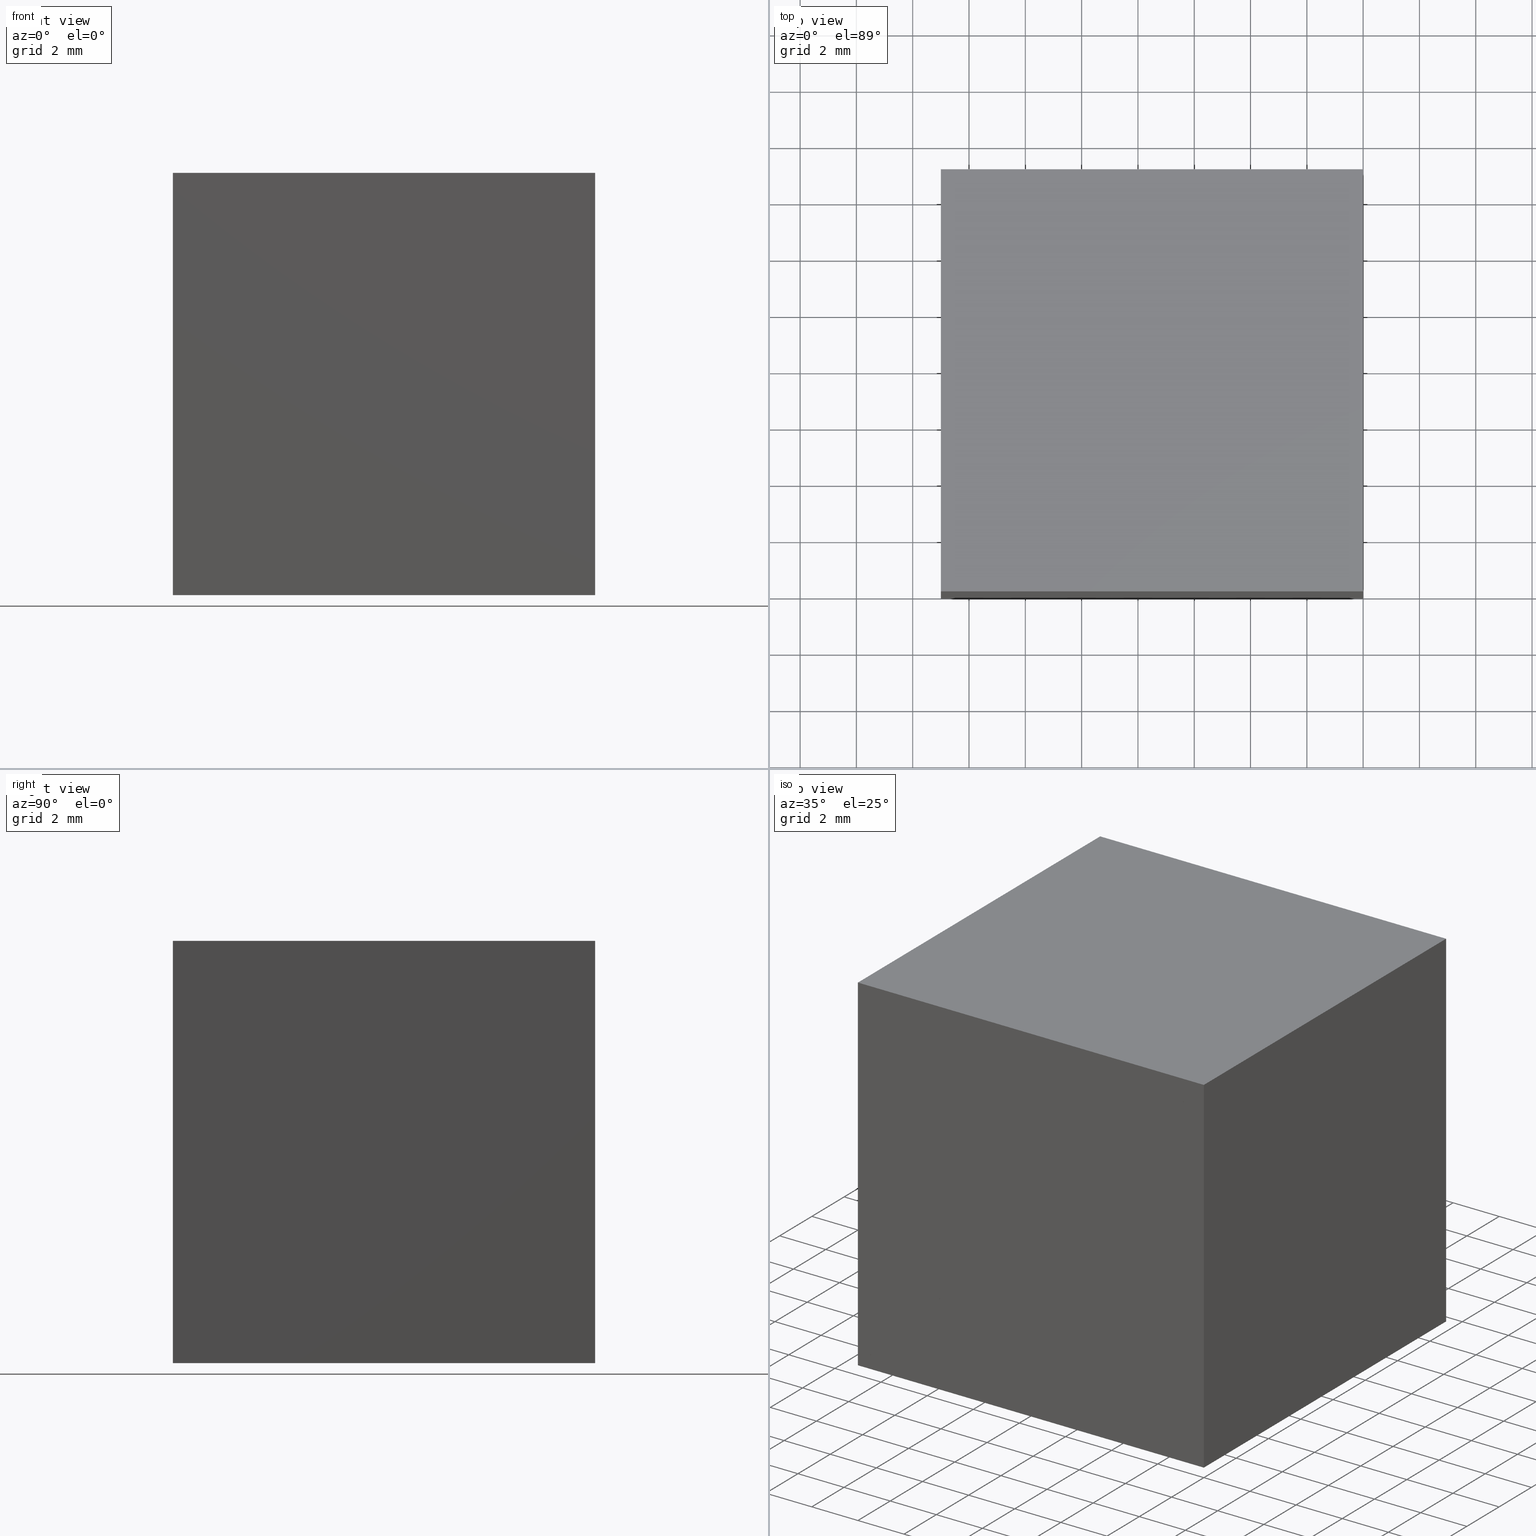
[diagram: canonical four-view strip — front | top / right | iso, engineering-drawing reading convention]
A machine part, canonical four-view strip (front | top / right | iso — engineering-drawing reading convention). The complete STEP part file that produces these views, byte-faithful:
ISO-10303-21;
HEADER;
FILE_DESCRIPTION (( 'STEP AP214' ),
    '1' );
FILE_NAME ('352509.STEP',
    '2019-08-15T02:08:46',
    ( 'user' ),
    ( '΢���й�' ),
    'SwSTEP 2.0',
    'SolidWorks 2016',
    '' );
FILE_SCHEMA (( 'AUTOMOTIVE_DESIGN' ));
ENDSEC;

DATA;
#1 = ORIENTED_EDGE ( 'NONE', *, *, #194, .T. ) ;
#2 = EDGE_LOOP ( 'NONE', ( #248, #24, #113, #265 ) ) ;
#3 = CARTESIAN_POINT ( 'NONE',  ( -15.00000000000000000, 15.00000000000000000, 0.0000000000000000000 ) ) ;
#4 = ADVANCED_FACE ( 'NONE', ( #130 ), #169, .F. ) ;
#5 = EDGE_CURVE ( 'NONE', #227, #223, #267, .T. ) ;
#6 = PLANE ( 'NONE',  #278 ) ;
#7 = ORIENTED_EDGE ( 'NONE', *, *, #240, .T. ) ;
#8 = FACE_OUTER_BOUND ( 'NONE', #81, .T. ) ;
#9 = VECTOR ( 'NONE', #281, 1000.000000000000000 ) ;
#10 = AXIS2_PLACEMENT_3D ( 'NONE', #201, #184, #31 ) ;
#11 = STYLED_ITEM ( 'NONE', ( #177 ), #145 ) ;
#12 = DIRECTION ( 'NONE',  ( 0.7071067811865476800, 0.0000000000000000000, 0.7071067811865474600 ) ) ;
#13 = FACE_OUTER_BOUND ( 'NONE', #259, .T. ) ;
#14 = PLANE ( 'NONE',  #105 ) ;
#15 = DIRECTION ( 'NONE',  ( 0.0000000000000000000, -0.0000000000000000000, 1.000000000000000000 ) ) ;
#16 = DIRECTION ( 'NONE',  ( 0.0000000000000000000, 0.0000000000000000000, 1.000000000000000000 ) ) ;
#17 = ORIENTED_EDGE ( 'NONE', *, *, #245, .T. ) ;
#18 = AXIS2_PLACEMENT_3D ( 'NONE', #197, #168, #16 ) ;
#19 = VECTOR ( 'NONE', #82, 1000.000000000000000 ) ;
#20 = SURFACE_SIDE_STYLE ('',( #203 ) ) ;
#21 =( NAMED_UNIT ( * ) PLANE_ANGLE_UNIT ( ) SI_UNIT ( $, .RADIAN. ) );
#22 = LINE ( 'NONE', #3, #135 ) ;
#23 = ORIENTED_EDGE ( 'NONE', *, *, #159, .F. ) ;
#24 = ORIENTED_EDGE ( 'NONE', *, *, #194, .F. ) ;
#25 = CARTESIAN_POINT ( 'NONE',  ( -15.00000000000000000, 15.00000000000000000, -14.99999999999999600 ) ) ;
#26 = EDGE_CURVE ( 'NONE', #62, #136, #261, .T. ) ;
#27 = CARTESIAN_POINT ( 'NONE',  ( 0.0000000000000000000, 15.00000000000000000, 0.0000000000000000000 ) ) ;
#28 = PRESENTATION_LAYER_ASSIGNMENT (  '', '', ( #294 ) ) ;
#29 = VECTOR ( 'NONE', #222, 1000.000000000000000 ) ;
#30 = PRESENTATION_LAYER_ASSIGNMENT (  '', '', ( #11 ) ) ;
#31 = DIRECTION ( 'NONE',  ( 0.0000000000000000000, -0.0000000000000000000, 1.000000000000000000 ) ) ;
#32 = ORIENTED_EDGE ( 'NONE', *, *, #119, .F. ) ;
#33 = DIRECTION ( 'NONE',  ( 0.7071067811865476800, 0.0000000000000000000, 0.7071067811865474600 ) ) ;
#34 = ADVANCED_FACE ( 'NONE', ( #140 ), #196, .F. ) ;
#35 = ORIENTED_EDGE ( 'NONE', *, *, #176, .F. ) ;
#36 = LINE ( 'NONE', #192, #158 ) ;
#37 = CARTESIAN_POINT ( 'NONE',  ( 0.0000000000000000000, 0.0000000000000000000, 0.0000000000000000000 ) ) ;
#38 = EDGE_LOOP ( 'NONE', ( #52, #87, #237 ) ) ;
#39 = EDGE_LOOP ( 'NONE', ( #57, #292, #32, #1 ) ) ;
#40 = MECHANICAL_DESIGN_GEOMETRIC_PRESENTATION_REPRESENTATION (  '', ( #294 ), #54 ) ;
#41 = MECHANICAL_DESIGN_GEOMETRIC_PRESENTATION_REPRESENTATION (  '', ( #11 ), #56 ) ;
#42 =( NAMED_UNIT ( * ) PLANE_ANGLE_UNIT ( ) SI_UNIT ( $, .RADIAN. ) );
#43 = VERTEX_POINT ( 'NONE', #59 ) ;
#44 = APPLICATION_CONTEXT ( 'automotive_design' ) ;
#45 = DIRECTION ( 'NONE',  ( 0.0000000000000000000, -1.000000000000000000, 0.0000000000000000000 ) ) ;
#46 = AXIS2_PLACEMENT_3D ( 'NONE', #102, #79, #221 ) ;
#47 = ORIENTED_EDGE ( 'NONE', *, *, #111, .T. ) ;
#48 = DIRECTION ( 'NONE',  ( -0.0000000000000000000, 0.0000000000000000000, 1.000000000000000000 ) ) ;
#49 = PLANE ( 'NONE',  #10 ) ;
#50 =( LENGTH_UNIT ( ) NAMED_UNIT ( * ) SI_UNIT ( .MILLI., .METRE. ) );
#51 = CARTESIAN_POINT ( 'NONE',  ( -15.00000000000000000, 0.0000000000000000000, -14.99999999999999600 ) ) ;
#52 = ORIENTED_EDGE ( 'NONE', *, *, #26, .F. ) ;
#53 = PLANE ( 'NONE',  #182 ) ;
#54 =( GEOMETRIC_REPRESENTATION_CONTEXT ( 3 ) GLOBAL_UNCERTAINTY_ASSIGNED_CONTEXT ( ( #198 ) ) GLOBAL_UNIT_ASSIGNED_CONTEXT ( ( #50, #172, #72 ) ) REPRESENTATION_CONTEXT ( 'NONE', 'WORKASPACE' ) );
#55 = PRODUCT ( '352509', '352509', '', ( #64 ) ) ;
#56 =( GEOMETRIC_REPRESENTATION_CONTEXT ( 3 ) GLOBAL_UNCERTAINTY_ASSIGNED_CONTEXT ( ( #90 ) ) GLOBAL_UNIT_ASSIGNED_CONTEXT ( ( #298, #21, #228 ) ) REPRESENTATION_CONTEXT ( 'NONE', 'WORKASPACE' ) );
#57 = ORIENTED_EDGE ( 'NONE', *, *, #133, .T. ) ;
#58 = DIRECTION ( 'NONE',  ( 0.7071067811865476800, 0.0000000000000000000, 0.7071067811865474600 ) ) ;
#59 = CARTESIAN_POINT ( 'NONE',  ( 0.0000000000000000000, 15.00000000000000000, -15.00000000000000000 ) ) ;
#60 = VERTEX_POINT ( 'NONE', #289 ) ;
#61 = CARTESIAN_POINT ( 'NONE',  ( 0.0000000000000000000, 15.00000000000000000, 0.0000000000000000000 ) ) ;
#62 = VERTEX_POINT ( 'NONE', #154 ) ;
#63 = FACE_OUTER_BOUND ( 'NONE', #153, .T. ) ;
#64 = PRODUCT_CONTEXT ( 'NONE', #44, 'mechanical' ) ;
#65 = APPLICATION_PROTOCOL_DEFINITION ( 'draft international standard', 'automotive_design', 1998, #44 ) ;
#66 = FILL_AREA_STYLE_COLOUR ( '', #299 ) ;
#67 = ORIENTED_EDGE ( 'NONE', *, *, #276, .T. ) ;
#68 = VECTOR ( 'NONE', #236, 1000.000000000000000 ) ;
#69 = PRESENTATION_STYLE_ASSIGNMENT (( #212 ) ) ;
#70 = VECTOR ( 'NONE', #126, 1000.000000000000000 ) ;
#71 = CARTESIAN_POINT ( 'NONE',  ( -15.00000000000000000, 15.00000000000000000, -14.99999999999999600 ) ) ;
#72 =( NAMED_UNIT ( * ) SI_UNIT ( $, .STERADIAN. ) SOLID_ANGLE_UNIT ( ) );
#73 = ORIENTED_EDGE ( 'NONE', *, *, #111, .F. ) ;
#74 = VECTOR ( 'NONE', #131, 1000.000000000000000 ) ;
#75 = ADVANCED_FACE ( 'NONE', ( #83 ), #291, .T. ) ;
#76 = ORIENTED_EDGE ( 'NONE', *, *, #211, .T. ) ;
#77 = AXIS2_PLACEMENT_3D ( 'NONE', #193, #250, #15 ) ;
#78 = VECTOR ( 'NONE', #191, 1000.000000000000000 ) ;
#79 = DIRECTION ( 'NONE',  ( -0.0000000000000000000, 1.000000000000000000, 0.0000000000000000000 ) ) ;
#80 = VECTOR ( 'NONE', #231, 1000.000000000000000 ) ;
#81 = EDGE_LOOP ( 'NONE', ( #23, #247, #104, #67 ) ) ;
#82 = DIRECTION ( 'NONE',  ( -0.0000000000000000000, -0.0000000000000000000, -1.000000000000000000 ) ) ;
#83 = FACE_OUTER_BOUND ( 'NONE', #301, .T. ) ;
#84 =( GEOMETRIC_REPRESENTATION_CONTEXT ( 3 ) GLOBAL_UNCERTAINTY_ASSIGNED_CONTEXT ( ( #146 ) ) GLOBAL_UNIT_ASSIGNED_CONTEXT ( ( #134, #258, #112 ) ) REPRESENTATION_CONTEXT ( 'NONE', 'WORKASPACE' ) );
#85 = DIRECTION ( 'NONE',  ( 1.000000000000000000, 0.0000000000000000000, 0.0000000000000000000 ) ) ;
#86 = CARTESIAN_POINT ( 'NONE',  ( 0.0000000000000000000, 0.0000000000000000000, 0.0000000000000000000 ) ) ;
#87 = ORIENTED_EDGE ( 'NONE', *, *, #290, .F. ) ;
#88 = DIRECTION ( 'NONE',  ( -0.7071067811865476800, 0.0000000000000000000, -0.7071067811865474600 ) ) ;
#89 = CARTESIAN_POINT ( 'NONE',  ( -15.00000000000000000, 15.00000000000000000, -14.99999999999999600 ) ) ;
#90 = UNCERTAINTY_MEASURE_WITH_UNIT (LENGTH_MEASURE( 1.000000000000000100E-005 ), #298, 'distance_accuracy_value', 'NONE');
#91 = LINE ( 'NONE', #270, #285 ) ;
#92 = SURFACE_SIDE_STYLE ('',( #188 ) ) ;
#93 = ADVANCED_FACE ( 'NONE', ( #210 ), #167, .F. ) ;
#94 = ORIENTED_EDGE ( 'NONE', *, *, #211, .F. ) ;
#95 = VECTOR ( 'NONE', #12, 1000.000000000000000 ) ;
#96 = CARTESIAN_POINT ( 'NONE',  ( 0.0000000000000000000, 15.00000000000000000, -15.00000000000000000 ) ) ;
#97 = AXIS2_PLACEMENT_3D ( 'NONE', #138, #230, #88 ) ;
#98 = AXIS2_PLACEMENT_3D ( 'NONE', #86, #110, #274 ) ;
#99 = CARTESIAN_POINT ( 'NONE',  ( 0.0000000000000000000, 15.00000000000000000, -15.00000000000000000 ) ) ;
#100 = CARTESIAN_POINT ( 'NONE',  ( 0.0000000000000000000, 0.0000000000000000000, 0.0000000000000000000 ) ) ;
#101 = EDGE_CURVE ( 'NONE', #232, #163, #147, .T. ) ;
#102 = CARTESIAN_POINT ( 'NONE',  ( 0.0000000000000000000, 15.00000000000000000, 0.0000000000000000000 ) ) ;
#103 = DIRECTION ( 'NONE',  ( 2.312964634635743000E-016, -0.0000000000000000000, 1.000000000000000000 ) ) ;
#104 = ORIENTED_EDGE ( 'NONE', *, *, #26, .T. ) ;
#105 = AXIS2_PLACEMENT_3D ( 'NONE', #249, #150, #287 ) ;
#106 = ORIENTED_EDGE ( 'NONE', *, *, #240, .F. ) ;
#107 = PRESENTATION_STYLE_ASSIGNMENT (( #273 ) ) ;
#108 = SURFACE_SIDE_STYLE ('',( #239 ) ) ;
#109 = VERTEX_POINT ( 'NONE', #100 ) ;
#110 = DIRECTION ( 'NONE',  ( 0.0000000000000000000, 0.0000000000000000000, 1.000000000000000000 ) ) ;
#111 = EDGE_CURVE ( 'NONE', #60, #232, #91, .T. ) ;
#112 =( NAMED_UNIT ( * ) SI_UNIT ( $, .STERADIAN. ) SOLID_ANGLE_UNIT ( ) );
#113 = ORIENTED_EDGE ( 'NONE', *, *, #229, .F. ) ;
#114 = PRODUCT_DEFINITION_SHAPE ( 'NONE', 'NONE',  #115 ) ;
#115 = PRODUCT_DEFINITION ( 'δ֪', '', #132, #219 ) ;
#116 = ORIENTED_EDGE ( 'NONE', *, *, #5, .T. ) ;
#117 = ORIENTED_EDGE ( 'NONE', *, *, #176, .T. ) ;
#118 = FILL_AREA_STYLE ('',( #142 ) ) ;
#119 = EDGE_CURVE ( 'NONE', #207, #43, #36, .T. ) ;
#120 = CARTESIAN_POINT ( 'NONE',  ( -15.00000000000000000, 15.00000000000000000, 0.0000000000000000000 ) ) ;
#121 = ADVANCED_FACE ( 'NONE', ( #13 ), #14, .F. ) ;
#122 = ORIENTED_EDGE ( 'NONE', *, *, #229, .T. ) ;
#123 = VECTOR ( 'NONE', #33, 1000.000000000000000 ) ;
#124 = DIRECTION ( 'NONE',  ( 0.7071067811865474600, 0.0000000000000000000, -0.7071067811865476800 ) ) ;
#125 = FACE_OUTER_BOUND ( 'NONE', #284, .T. ) ;
#126 = DIRECTION ( 'NONE',  ( 0.0000000000000000000, 0.0000000000000000000, -1.000000000000000000 ) ) ;
#127 = CARTESIAN_POINT ( 'NONE',  ( 0.0000000000000000000, 15.00000000000000000, 0.0000000000000000000 ) ) ;
#128 = ORIENTED_EDGE ( 'NONE', *, *, #264, .F. ) ;
#129 = VECTOR ( 'NONE', #45, 1000.000000000000000 ) ;
#130 = FACE_OUTER_BOUND ( 'NONE', #206, .T. ) ;
#131 = DIRECTION ( 'NONE',  ( -0.0000000000000000000, -1.000000000000000000, -0.0000000000000000000 ) ) ;
#132 = PRODUCT_DEFINITION_FORMATION_WITH_SPECIFIED_SOURCE ( '�κ�', '', #55, .NOT_KNOWN. ) ;
#133 = EDGE_CURVE ( 'NONE', #163, #60, #200, .T. ) ;
#134 =( LENGTH_UNIT ( ) NAMED_UNIT ( * ) SI_UNIT ( .MILLI., .METRE. ) );
#135 = VECTOR ( 'NONE', #208, 1000.000000000000000 ) ;
#136 = VERTEX_POINT ( 'NONE', #246 ) ;
#137 = SHAPE_DEFINITION_REPRESENTATION ( #114, #145 ) ;
#138 = CARTESIAN_POINT ( 'NONE',  ( 0.0000000000000000000, 15.00000000000000000, 0.0000000000000000000 ) ) ;
#139 = AXIS2_PLACEMENT_3D ( 'NONE', #148, #124, #268 ) ;
#140 = FACE_OUTER_BOUND ( 'NONE', #39, .T. ) ;
#141 = DIRECTION ( 'NONE',  ( -1.000000000000000000, 0.0000000000000000000, 0.0000000000000000000 ) ) ;
#142 = FILL_AREA_STYLE_COLOUR ( '', #242 ) ;
#143 = LINE ( 'NONE', #89, #80 ) ;
#144 = ORIENTED_EDGE ( 'NONE', *, *, #251, .T. ) ;
#145 = ADVANCED_BREP_SHAPE_REPRESENTATION ( '352509', ( #187, #243, #98 ), #84 ) ;
#146 = UNCERTAINTY_MEASURE_WITH_UNIT (LENGTH_MEASURE( 1.000000000000000100E-005 ), #134, 'distance_accuracy_value', 'NONE');
#147 = LINE ( 'NONE', #151, #272 ) ;
#148 = CARTESIAN_POINT ( 'NONE',  ( -15.00000000000000000, 15.00000000000000000, -14.99999999999999600 ) ) ;
#149 = PRODUCT_RELATED_PRODUCT_CATEGORY ( 'part', '', ( #55 ) ) ;
#150 = DIRECTION ( 'NONE',  ( -0.0000000000000000000, 1.000000000000000000, 0.0000000000000000000 ) ) ;
#151 = CARTESIAN_POINT ( 'NONE',  ( -15.00000000000000000, 0.0000000000000000000, -14.99999999999999600 ) ) ;
#152 = EDGE_CURVE ( 'NONE', #43, #60, #256, .T. ) ;
#153 = EDGE_LOOP ( 'NONE', ( #173, #94, #253, #144 ) ) ;
#154 = CARTESIAN_POINT ( 'NONE',  ( -15.00000000000000000, 15.00000000000000000, -14.99999999999999600 ) ) ;
#155 = CARTESIAN_POINT ( 'NONE',  ( 0.0000000000000000000, 15.00000000000000000, -15.00000000000000000 ) ) ;
#156 = STYLED_ITEM ( 'NONE', ( #107 ), #187 ) ;
#157 = CLOSED_SHELL ( 'NONE', ( #282, #213, #185, #238, #93 ) ) ;
#158 = VECTOR ( 'NONE', #288, 1000.000000000000000 ) ;
#159 = EDGE_CURVE ( 'NONE', #223, #109, #224, .T. ) ;
#160 = CARTESIAN_POINT ( 'NONE',  ( 0.0000000000000000000, 15.00000000000000000, 0.0000000000000000000 ) ) ;
#161 = ADVANCED_FACE ( 'NONE', ( #190 ), #165, .F. ) ;
#162 = ORIENTED_EDGE ( 'NONE', *, *, #159, .T. ) ;
#163 = VERTEX_POINT ( 'NONE', #218 ) ;
#164 = VECTOR ( 'NONE', #300, 1000.000000000000000 ) ;
#165 = PLANE ( 'NONE',  #139 ) ;
#166 = ORIENTED_EDGE ( 'NONE', *, *, #133, .F. ) ;
#167 = PLANE ( 'NONE',  #77 ) ;
#168 = DIRECTION ( 'NONE',  ( -1.000000000000000000, 0.0000000000000000000, 0.0000000000000000000 ) ) ;
#169 = PLANE ( 'NONE',  #283 ) ;
#170 = ORIENTED_EDGE ( 'NONE', *, *, #101, .F. ) ;
#171 = LINE ( 'NONE', #120, #68 ) ;
#172 =( NAMED_UNIT ( * ) PLANE_ANGLE_UNIT ( ) SI_UNIT ( $, .RADIAN. ) );
#173 = ORIENTED_EDGE ( 'NONE', *, *, #5, .F. ) ;
#174 = LINE ( 'NONE', #96, #183 ) ;
#175 = FILL_AREA_STYLE ('',( #286 ) ) ;
#176 = EDGE_CURVE ( 'NONE', #43, #296, #174, .T. ) ;
#177 = PRESENTATION_STYLE_ASSIGNMENT (( #297 ) ) ;
#178 = CARTESIAN_POINT ( 'NONE',  ( -15.00000000000000000, 15.00000000000000000, -14.99999999999999600 ) ) ;
#179 = VERTEX_POINT ( 'NONE', #244 ) ;
#180 = CARTESIAN_POINT ( 'NONE',  ( -15.00000000000000000, 15.00000000000000000, -14.99999999999999600 ) ) ;
#181 = VECTOR ( 'NONE', #262, 1000.000000000000000 ) ;
#182 = AXIS2_PLACEMENT_3D ( 'NONE', #189, #48, #85 ) ;
#183 = VECTOR ( 'NONE', #217, 1000.000000000000000 ) ;
#184 = DIRECTION ( 'NONE',  ( 0.0000000000000000000, 1.000000000000000000, 0.0000000000000000000 ) ) ;
#185 = ADVANCED_FACE ( 'NONE', ( #125 ), #53, .T. ) ;
#186 = FACE_OUTER_BOUND ( 'NONE', #38, .T. ) ;
#187 = MANIFOLD_SOLID_BREP ( '͹̨-����1', #266 ) ;
#188 = SURFACE_STYLE_FILL_AREA ( #118 ) ;
#189 = CARTESIAN_POINT ( 'NONE',  ( -15.00000000000000000, 15.00000000000000000, 0.0000000000000000000 ) ) ;
#190 = FACE_OUTER_BOUND ( 'NONE', #2, .T. ) ;
#191 = DIRECTION ( 'NONE',  ( -0.0000000000000000000, -1.000000000000000000, -0.0000000000000000000 ) ) ;
#192 = CARTESIAN_POINT ( 'NONE',  ( 0.0000000000000000000, 15.00000000000000000, 0.0000000000000000000 ) ) ;
#193 = CARTESIAN_POINT ( 'NONE',  ( 0.0000000000000000000, 0.0000000000000000000, 0.0000000000000000000 ) ) ;
#194 = EDGE_CURVE ( 'NONE', #207, #163, #255, .T. ) ;
#195 = LINE ( 'NONE', #180, #74 ) ;
#196 = PLANE ( 'NONE',  #18 ) ;
#197 = CARTESIAN_POINT ( 'NONE',  ( 0.0000000000000000000, 15.00000000000000000, 0.0000000000000000000 ) ) ;
#198 = UNCERTAINTY_MEASURE_WITH_UNIT (LENGTH_MEASURE( 1.000000000000000100E-005 ), #50, 'distance_accuracy_value', 'NONE');
#199 = PRESENTATION_LAYER_ASSIGNMENT (  '', '', ( #156 ) ) ;
#200 = LINE ( 'NONE', #269, #70 ) ;
#201 = CARTESIAN_POINT ( 'NONE',  ( 0.0000000000000000000, 15.00000000000000000, 0.0000000000000000000 ) ) ;
#202 = CARTESIAN_POINT ( 'NONE',  ( -15.00000000000000000, 15.00000000000000000, -14.99999999999999600 ) ) ;
#203 = SURFACE_STYLE_FILL_AREA ( #175 ) ;
#204 =( LENGTH_UNIT ( ) NAMED_UNIT ( * ) SI_UNIT ( .MILLI., .METRE. ) );
#205 = FILL_AREA_STYLE ('',( #66 ) ) ;
#206 = EDGE_LOOP ( 'NONE', ( #47, #128, #35, #277 ) ) ;
#207 = VERTEX_POINT ( 'NONE', #160 ) ;
#208 = DIRECTION ( 'NONE',  ( -1.000000000000000000, -0.0000000000000000000, -0.0000000000000000000 ) ) ;
#209 = APPLICATION_PROTOCOL_DEFINITION ( 'draft international standard', 'automotive_design', 1998, #226 ) ;
#210 = FACE_OUTER_BOUND ( 'NONE', #280, .T. ) ;
#211 = EDGE_CURVE ( 'NONE', #179, #227, #171, .T. ) ;
#212 = SURFACE_STYLE_USAGE ( .BOTH. , #92 ) ;
#213 = ADVANCED_FACE ( 'NONE', ( #63 ), #6, .T. ) ;
#214 = CARTESIAN_POINT ( 'NONE',  ( -15.00000000000000000, 0.0000000000000000000, 0.0000000000000000000 ) ) ;
#215 = MECHANICAL_DESIGN_GEOMETRIC_PRESENTATION_REPRESENTATION (  '', ( #156 ), #235 ) ;
#216 = COLOUR_RGB ( '',1.000000000000000000, 1.000000000000000000, 1.000000000000000000 ) ;
#217 = DIRECTION ( 'NONE',  ( -1.000000000000000000, 0.0000000000000000000, 2.312964634635743000E-016 ) ) ;
#218 = CARTESIAN_POINT ( 'NONE',  ( 0.0000000000000000000, 0.0000000000000000000, 0.0000000000000000000 ) ) ;
#219 = PRODUCT_DEFINITION_CONTEXT ( 'detailed design', #226, 'design' ) ;
#220 = DIRECTION ( 'NONE',  ( -1.000000000000000000, 0.0000000000000000000, 2.312964634635743000E-016 ) ) ;
#221 = DIRECTION ( 'NONE',  ( 0.0000000000000000000, -0.0000000000000000000, 1.000000000000000000 ) ) ;
#222 = DIRECTION ( 'NONE',  ( 0.7071067811865476800, 0.0000000000000000000, 0.7071067811865474600 ) ) ;
#223 = VERTEX_POINT ( 'NONE', #263 ) ;
#224 = LINE ( 'NONE', #37, #95 ) ;
#225 = LINE ( 'NONE', #178, #164 ) ;
#226 = APPLICATION_CONTEXT ( 'automotive_design' ) ;
#227 = VERTEX_POINT ( 'NONE', #214 ) ;
#228 =( NAMED_UNIT ( * ) SI_UNIT ( $, .STERADIAN. ) SOLID_ANGLE_UNIT ( ) );
#229 = EDGE_CURVE ( 'NONE', #296, #207, #293, .T. ) ;
#230 = DIRECTION ( 'NONE',  ( 0.7071067811865474600, 0.0000000000000000000, -0.7071067811865476800 ) ) ;
#231 = DIRECTION ( 'NONE',  ( 0.0000000000000000000, -1.000000000000000000, 0.0000000000000000000 ) ) ;
#232 = VERTEX_POINT ( 'NONE', #51 ) ;
#233 = UNCERTAINTY_MEASURE_WITH_UNIT (LENGTH_MEASURE( 1.000000000000000100E-005 ), #204, 'distance_accuracy_value', 'NONE');
#234 = LINE ( 'NONE', #279, #181 ) ;
#235 =( GEOMETRIC_REPRESENTATION_CONTEXT ( 3 ) GLOBAL_UNCERTAINTY_ASSIGNED_CONTEXT ( ( #233 ) ) GLOBAL_UNIT_ASSIGNED_CONTEXT ( ( #204, #42, #257 ) ) REPRESENTATION_CONTEXT ( 'NONE', 'WORKASPACE' ) );
#236 = DIRECTION ( 'NONE',  ( 0.0000000000000000000, -1.000000000000000000, 0.0000000000000000000 ) ) ;
#237 = ORIENTED_EDGE ( 'NONE', *, *, #245, .F. ) ;
#238 = ADVANCED_FACE ( 'NONE', ( #186 ), #49, .T. ) ;
#239 = SURFACE_STYLE_FILL_AREA ( #205 ) ;
#240 = EDGE_CURVE ( 'NONE', #109, #227, #234, .T. ) ;
#241 = ORIENTED_EDGE ( 'NONE', *, *, #276, .F. ) ;
#242 = COLOUR_RGB ( '',1.000000000000000000, 1.000000000000000000, 1.000000000000000000 ) ;
#243 = MANIFOLD_SOLID_BREP ( '͹̨-����2', #157 ) ;
#244 = CARTESIAN_POINT ( 'NONE',  ( -15.00000000000000000, 15.00000000000000000, 0.0000000000000000000 ) ) ;
#245 = EDGE_CURVE ( 'NONE', #136, #179, #22, .T. ) ;
#246 = CARTESIAN_POINT ( 'NONE',  ( 0.0000000000000000000, 15.00000000000000000, 0.0000000000000000000 ) ) ;
#247 = ORIENTED_EDGE ( 'NONE', *, *, #251, .F. ) ;
#248 = ORIENTED_EDGE ( 'NONE', *, *, #101, .T. ) ;
#249 = CARTESIAN_POINT ( 'NONE',  ( 0.0000000000000000000, 0.0000000000000000000, 0.0000000000000000000 ) ) ;
#250 = DIRECTION ( 'NONE',  ( 0.0000000000000000000, 1.000000000000000000, 0.0000000000000000000 ) ) ;
#251 = EDGE_CURVE ( 'NONE', #62, #223, #143, .T. ) ;
#252 = CARTESIAN_POINT ( 'NONE',  ( -15.00000000000000000, -0.0000000000000000000, -14.99999999999999600 ) ) ;
#253 = ORIENTED_EDGE ( 'NONE', *, *, #290, .T. ) ;
#254 = LINE ( 'NONE', #27, #129 ) ;
#255 = LINE ( 'NONE', #61, #9 ) ;
#256 = LINE ( 'NONE', #99, #78 ) ;
#257 =( NAMED_UNIT ( * ) SI_UNIT ( $, .STERADIAN. ) SOLID_ANGLE_UNIT ( ) );
#258 =( NAMED_UNIT ( * ) PLANE_ANGLE_UNIT ( ) SI_UNIT ( $, .RADIAN. ) );
#259 = EDGE_LOOP ( 'NONE', ( #170, #73, #166 ) ) ;
#260 = PLANE ( 'NONE',  #97 ) ;
#261 = LINE ( 'NONE', #127, #29 ) ;
#262 = DIRECTION ( 'NONE',  ( -1.000000000000000000, -0.0000000000000000000, -0.0000000000000000000 ) ) ;
#263 = CARTESIAN_POINT ( 'NONE',  ( -15.00000000000000000, -0.0000000000000000000, -14.99999999999999600 ) ) ;
#264 = EDGE_CURVE ( 'NONE', #296, #232, #195, .T. ) ;
#265 = ORIENTED_EDGE ( 'NONE', *, *, #264, .T. ) ;
#266 = CLOSED_SHELL ( 'NONE', ( #161, #34, #4, #75, #121 ) ) ;
#267 = LINE ( 'NONE', #252, #19 ) ;
#268 = DIRECTION ( 'NONE',  ( -0.7071067811865476800, 0.0000000000000000000, -0.7071067811865474600 ) ) ;
#269 = CARTESIAN_POINT ( 'NONE',  ( 0.0000000000000000000, 0.0000000000000000000, 0.0000000000000000000 ) ) ;
#270 = CARTESIAN_POINT ( 'NONE',  ( 0.0000000000000000000, 0.0000000000000000000, -15.00000000000000000 ) ) ;
#271 = DIRECTION ( 'NONE',  ( 1.000000000000000000, 0.0000000000000000000, -2.312964634635743000E-016 ) ) ;
#272 = VECTOR ( 'NONE', #58, 1000.000000000000000 ) ;
#273 = SURFACE_STYLE_USAGE ( .BOTH. , #20 ) ;
#274 = DIRECTION ( 'NONE',  ( 1.000000000000000000, 0.0000000000000000000, 0.0000000000000000000 ) ) ;
#275 = ORIENTED_EDGE ( 'NONE', *, *, #119, .T. ) ;
#276 = EDGE_CURVE ( 'NONE', #136, #109, #254, .T. ) ;
#277 = ORIENTED_EDGE ( 'NONE', *, *, #152, .T. ) ;
#278 = AXIS2_PLACEMENT_3D ( 'NONE', #71, #141, #295 ) ;
#279 = CARTESIAN_POINT ( 'NONE',  ( -15.00000000000000000, 0.0000000000000000000, 0.0000000000000000000 ) ) ;
#280 = EDGE_LOOP ( 'NONE', ( #162, #7, #116 ) ) ;
#281 = DIRECTION ( 'NONE',  ( -0.0000000000000000000, -1.000000000000000000, -0.0000000000000000000 ) ) ;
#282 = ADVANCED_FACE ( 'NONE', ( #8 ), #260, .T. ) ;
#283 = AXIS2_PLACEMENT_3D ( 'NONE', #155, #103, #271 ) ;
#284 = EDGE_LOOP ( 'NONE', ( #106, #241, #17, #76 ) ) ;
#285 = VECTOR ( 'NONE', #220, 1000.000000000000000 ) ;
#286 = FILL_AREA_STYLE_COLOUR ( '', #216 ) ;
#287 = DIRECTION ( 'NONE',  ( 0.0000000000000000000, -0.0000000000000000000, 1.000000000000000000 ) ) ;
#288 = DIRECTION ( 'NONE',  ( 0.0000000000000000000, 0.0000000000000000000, -1.000000000000000000 ) ) ;
#289 = CARTESIAN_POINT ( 'NONE',  ( 0.0000000000000000000, 0.0000000000000000000, -15.00000000000000000 ) ) ;
#290 = EDGE_CURVE ( 'NONE', #179, #62, #225, .T. ) ;
#291 = PLANE ( 'NONE',  #46 ) ;
#292 = ORIENTED_EDGE ( 'NONE', *, *, #152, .F. ) ;
#293 = LINE ( 'NONE', #202, #123 ) ;
#294 = STYLED_ITEM ( 'NONE', ( #69 ), #243 ) ;
#295 = DIRECTION ( 'NONE',  ( 0.0000000000000000000, 0.0000000000000000000, 1.000000000000000000 ) ) ;
#296 = VERTEX_POINT ( 'NONE', #25 ) ;
#297 = SURFACE_STYLE_USAGE ( .BOTH. , #108 ) ;
#298 =( LENGTH_UNIT ( ) NAMED_UNIT ( * ) SI_UNIT ( .MILLI., .METRE. ) );
#299 = COLOUR_RGB ( '',1.000000000000000000, 1.000000000000000000, 1.000000000000000000 ) ;
#300 = DIRECTION ( 'NONE',  ( -0.0000000000000000000, -0.0000000000000000000, -1.000000000000000000 ) ) ;
#301 = EDGE_LOOP ( 'NONE', ( #122, #275, #117 ) ) ;
ENDSEC;
END-ISO-10303-21;
